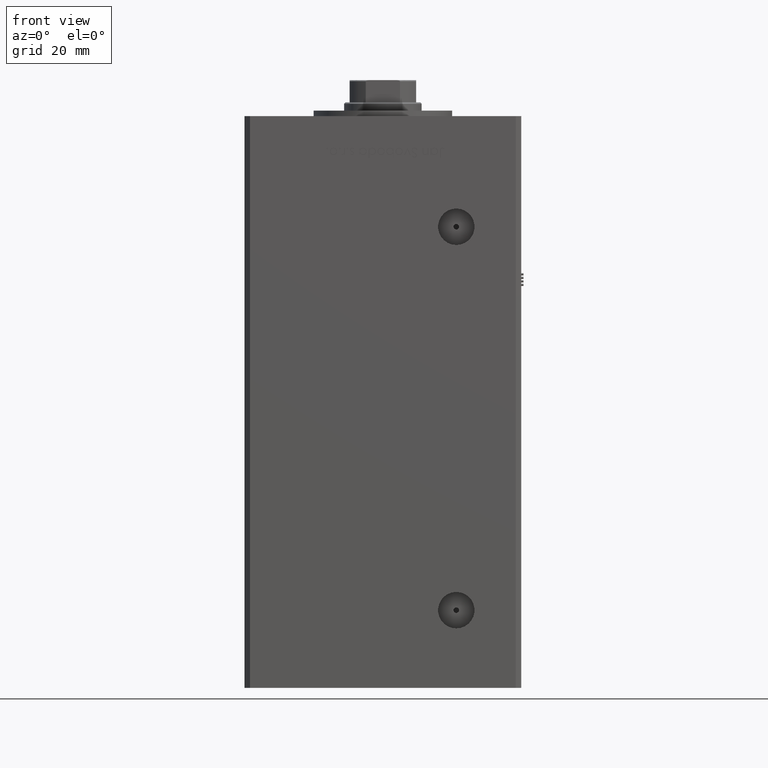
[diagram: clean part render]
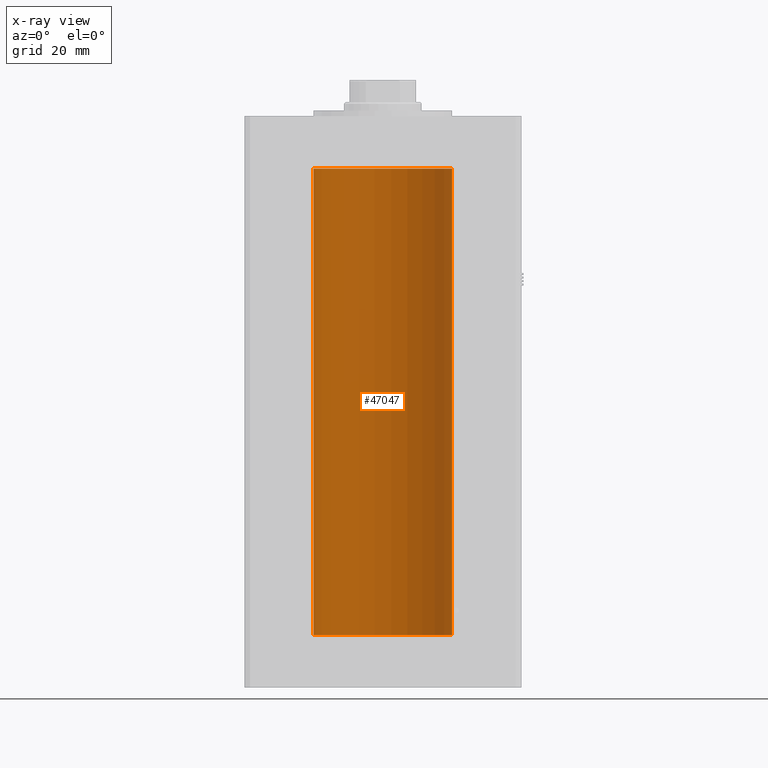
[diagram: x-ray — body ghosted, one internal face saturated and labeled with its STEP entity id]
A machine part, front view, then the same camera in x-ray: the body is ghosted and one INTERNAL B-rep face — a face not visible from any outside direction — is saturated and labeled: STEP entity #47047.
In plain terms, the highlighted cylindrical surface (partial cylindrical patch) has radius 25 mm, axis along (-0, -0, -1).
Its self-contained STEP definition (entity closure, byte-faithful):
#1597 = VERTEX_POINT ( 'NONE', #3239 ) ;
#3175 = DIRECTION ( 'NONE',  ( -0.000000000000000000, -0.000000000000000000, -1.000000000000000000 ) ) ;
#3239 = CARTESIAN_POINT ( 'NONE',  ( 25.00000000000000000, 3.061616997868383043E-15, 168.5000000000000000 ) ) ;
#4535 = EDGE_CURVE ( 'NONE', #1597, #42339, #19665, .T. ) ;
#4810 = AXIS2_PLACEMENT_3D ( 'NONE', #18561, #18024, #53105 ) ;
#6284 = CARTESIAN_POINT ( 'NONE',  ( 25.00000000000000000, 3.061616997868383043E-15, 168.5000000000000000 ) ) ;
#8101 = CARTESIAN_POINT ( 'NONE',  ( -25.00000000000000000, 0.000000000000000000, 168.5000000000000000 ) ) ;
#9646 = AXIS2_PLACEMENT_3D ( 'NONE', #48573, #22398, #14016 ) ;
#11213 = CARTESIAN_POINT ( 'NONE',  ( -25.00000000000000000, 0.000000000000000000, 0.000000000000000000 ) ) ;
#11397 = ORIENTED_EDGE ( 'NONE', *, *, #41832, .T. ) ;
#14016 = DIRECTION ( 'NONE',  ( 1.000000000000000000, 0.000000000000000000, 0.000000000000000000 ) ) ;
#14617 = CIRCLE ( 'NONE', #4810, 25.00000000000000000 ) ;
#18024 = DIRECTION ( 'NONE',  ( -0.000000000000000000, 0.000000000000000000, 1.000000000000000000 ) ) ;
#18533 = AXIS2_PLACEMENT_3D ( 'NONE', #28969, #28419, #19779 ) ;
#18561 = CARTESIAN_POINT ( 'NONE',  ( 0.000000000000000000, 0.000000000000000000, 168.5000000000000000 ) ) ;
#19665 = LINE ( 'NONE', #6284, #30409 ) ;
#19779 = DIRECTION ( 'NONE',  ( -1.000000000000000000, 0.000000000000000000, 0.000000000000000000 ) ) ;
#20322 = CYLINDRICAL_SURFACE ( 'NONE', #18533, 25.00000000000000000 ) ;
#22398 = DIRECTION ( 'NONE',  ( -0.000000000000000000, 0.000000000000000000, 1.000000000000000000 ) ) ;
#23967 = FACE_OUTER_BOUND ( 'NONE', #38109, .T. ) ;
#24832 = EDGE_CURVE ( 'NONE', #1597, #27211, #14617, .T. ) ;
#24958 = ORIENTED_EDGE ( 'NONE', *, *, #38189, .F. ) ;
#26380 = VECTOR ( 'NONE', #50721, 1000.000000000000000 ) ;
#27211 = VERTEX_POINT ( 'NONE', #8101 ) ;
#28419 = DIRECTION ( 'NONE',  ( -0.000000000000000000, -0.000000000000000000, -1.000000000000000000 ) ) ;
#28969 = CARTESIAN_POINT ( 'NONE',  ( 0.000000000000000000, 0.000000000000000000, 168.5000000000000000 ) ) ;
#30409 = VECTOR ( 'NONE', #3175, 1000.000000000000000 ) ;
#30957 = ORIENTED_EDGE ( 'NONE', *, *, #24832, .T. ) ;
#34611 = CIRCLE ( 'NONE', #9646, 25.00000000000000000 ) ;
#35445 = CARTESIAN_POINT ( 'NONE',  ( 25.00000000000000000, 3.061616997868383043E-15, 0.000000000000000000 ) ) ;
#38109 = EDGE_LOOP ( 'NONE', ( #42500, #30957, #11397, #24958 ) ) ;
#38189 = EDGE_CURVE ( 'NONE', #42339, #49040, #34611, .T. ) ;
#41807 = CARTESIAN_POINT ( 'NONE',  ( -25.00000000000000000, 0.000000000000000000, 168.5000000000000000 ) ) ;
#41832 = EDGE_CURVE ( 'NONE', #27211, #49040, #46277, .T. ) ;
#42339 = VERTEX_POINT ( 'NONE', #35445 ) ;
#42500 = ORIENTED_EDGE ( 'NONE', *, *, #4535, .F. ) ;
#46277 = LINE ( 'NONE', #41807, #26380 ) ;
#47047 = ADVANCED_FACE ( 'NONE', ( #23967 ), #20322, .F. ) ;
#48573 = CARTESIAN_POINT ( 'NONE',  ( 0.000000000000000000, 0.000000000000000000, 0.000000000000000000 ) ) ;
#49040 = VERTEX_POINT ( 'NONE', #11213 ) ;
#50721 = DIRECTION ( 'NONE',  ( -0.000000000000000000, -0.000000000000000000, -1.000000000000000000 ) ) ;
#53105 = DIRECTION ( 'NONE',  ( 1.000000000000000000, 0.000000000000000000, 0.000000000000000000 ) ) ;